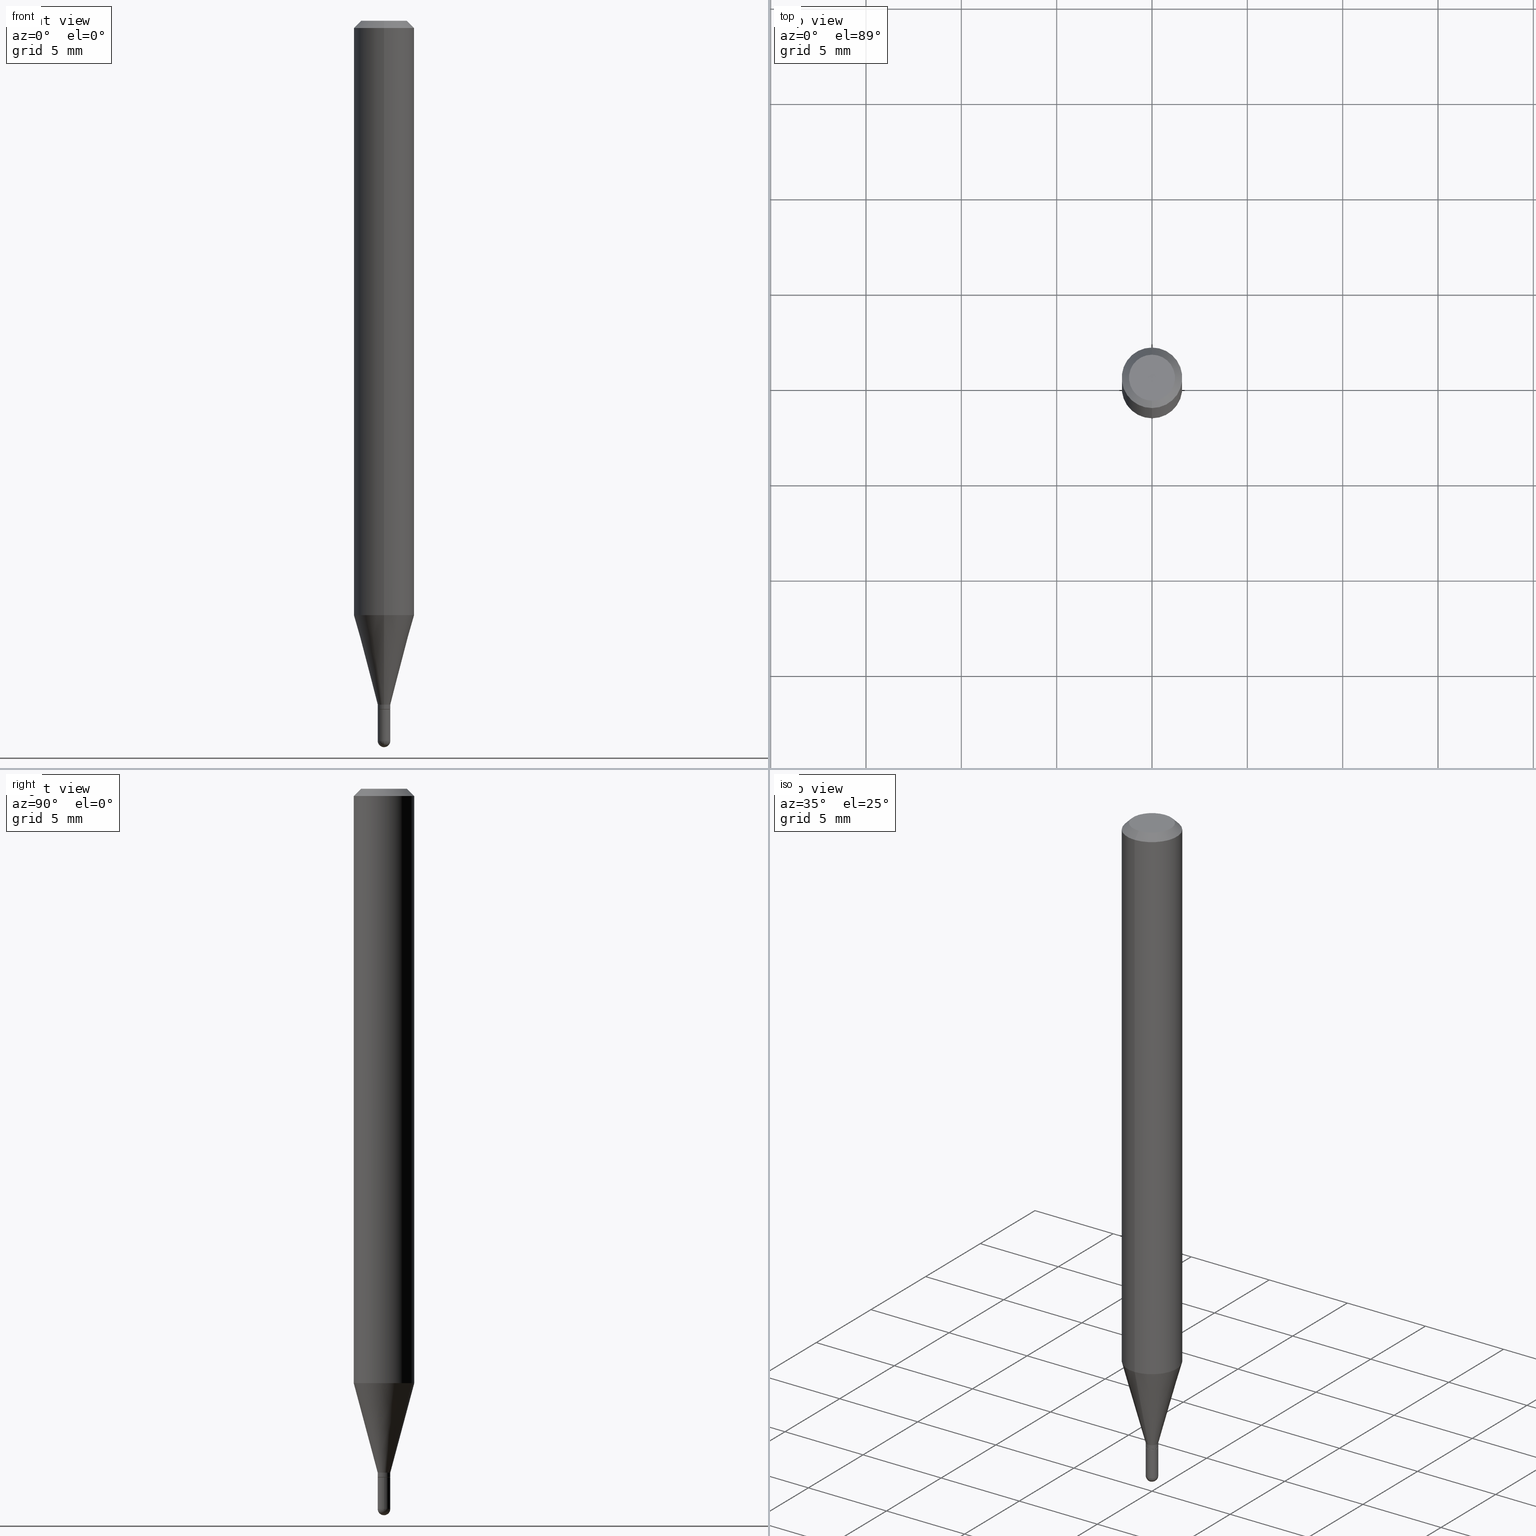
[diagram: canonical four-view strip — front | top / right | iso, engineering-drawing reading convention]
A machine part, canonical four-view strip (front | top / right | iso — engineering-drawing reading convention). The complete STEP part file that produces these views, byte-faithful:
ISO-10303-21;
HEADER;
FILE_DESCRIPTION (( 'STEP AP203' ),
    '1' );
FILE_NAME ('00464.STEP',
    '2024-03-07T17:58:41',
    ( '' ),
    ( '' ),
    'SwSTEP 2.0',
    'SolidWorks 2023',
    '' );
FILE_SCHEMA (( 'CONFIG_CONTROL_DESIGN' ));
ENDSEC;

DATA;
#1 = CIRCLE ( 'NONE', #26, 0.01299999999999999767 ) ;
#2 = COORDINATED_UNIVERSAL_TIME_OFFSET ( 5, 0, .BEHIND. ) ;
#3 = AXIS2_PLACEMENT_3D ( 'NONE', #65, #495, #218 ) ;
#4 = EDGE_LOOP ( 'NONE', ( #126, #473, #167, #361 ) ) ;
#5 = PERSON_AND_ORGANIZATION ( #78, #491 ) ;
#6 = EDGE_CURVE ( 'NONE', #319, #261, #415, .T. ) ;
#7 = COORDINATED_UNIVERSAL_TIME_OFFSET ( 5, 0, .BEHIND. ) ;
#8 = ORIENTED_EDGE ( 'NONE', *, *, #140, .T. ) ;
#9 = AXIS2_PLACEMENT_3D ( 'NONE', #129, #480, #88 ) ;
#10 = DIRECTION ( 'NONE',  ( -6.982962677686266711E-15, -1.000000000000000000, 3.491472814868969217E-15 ) ) ;
#11 = DIRECTION ( 'NONE',  ( -2.445474758444490468E-29, 3.491472814868968822E-15, 1.000000000000000000 ) ) ;
#12 = CARTESIAN_POINT ( 'NONE',  ( 3.001241874590089611E-29, -4.284957094647328536E-15, -1.227263485025340994 ) ) ;
#13 = DIRECTION ( 'NONE',  ( -2.445474758444490748E-29, 3.491472814868968822E-15, 1.000000000000000000 ) ) ;
#14 = DIRECTION ( 'NONE',  ( 2.445474758444490748E-29, -3.491472814868968822E-15, -1.000000000000000000 ) ) ;
#15 = CARTESIAN_POINT ( 'NONE',  ( 3.477465106508066119E-29, -4.964874342743674558E-15, -1.421999999999999931 ) ) ;
#16 = FACE_OUTER_BOUND ( 'NONE', #149, .T. ) ;
#17 = VECTOR ( 'NONE', #256, 39.37007874015748143 ) ;
#18 = AXIS2_PLACEMENT_3D ( 'NONE', #419, #14, #97 ) ;
#19 = DIRECTION ( 'NONE',  ( -2.445474758444490748E-29, 3.491472814868968822E-15, 1.000000000000000000 ) ) ;
#20 = CC_DESIGN_APPROVAL ( #358, ( #340 ) ) ;
#21 = LINE ( 'NONE', #141, #257 ) ;
#22 = EDGE_CURVE ( 'NONE', #261, #393, #494, .T. ) ;
#23 = LINE ( 'NONE', #486, #137 ) ;
#24 = DIRECTION ( 'NONE',  ( 1.000000000000000000, -6.982962677686258822E-15, 0.000000000000000000 ) ) ;
#25 = DIRECTION ( 'NONE',  ( -2.445474758444490748E-29, 3.491472814868968822E-15, 1.000000000000000000 ) ) ;
#26 = AXIS2_PLACEMENT_3D ( 'NONE', #136, #60, #382 ) ;
#27 = ORIENTED_EDGE ( 'NONE', *, *, #483, .F. ) ;
#28 = DIRECTION ( 'NONE',  ( -1.807323732225330139E-15, -0.2588190451025181860, 0.9659258262890689783 ) ) ;
#29 = CARTESIAN_POINT ( 'NONE',  ( 3.668212137666738049E-31, -5.237209222303456636E-17, -0.01500000000000000812 ) ) ;
#30 = ORIENTED_EDGE ( 'NONE', *, *, #127, .T. ) ;
#31 = CARTESIAN_POINT ( 'NONE',  ( 3.453010358923621239E-29, -4.929959614594984823E-15, -1.412000000000000144 ) ) ;
#32 = CARTESIAN_POINT ( 'NONE',  ( 3.477465106508066119E-29, -4.964874342743674558E-15, -1.421999999999999931 ) ) ;
#33 = ORIENTED_EDGE ( 'NONE', *, *, #501, .T. ) ;
#34 = EDGE_CURVE ( 'NONE', #394, #404, #21, .T. ) ;
#35 = VERTEX_POINT ( 'NONE', #99 ) ;
#36 = LINE ( 'NONE', #144, #89 ) ;
#37 = VERTEX_POINT ( 'NONE', #298 ) ;
#38 = CIRCLE ( 'NONE', #251, 0.01299999999999992134 ) ;
#39 = CC_DESIGN_PERSON_AND_ORGANIZATION_ASSIGNMENT ( #45, #90, ( #411 ) ) ;
#40 = AXIS2_PLACEMENT_3D ( 'NONE', #146, #267, #66 ) ;
#41 = ORIENTED_EDGE ( 'NONE', *, *, #485, .T. ) ;
#42 = CARTESIAN_POINT ( 'NONE',  ( 0.000000000000000000, 0.000000000000000000, 0.000000000000000000 ) ) ;
#43 = ORIENTED_EDGE ( 'NONE', *, *, #6, .T. ) ;
#44 = CARTESIAN_POINT ( 'NONE',  ( 3.636412114797298223E-29, -5.191832750859757506E-15, -1.487000000000000099 ) ) ;
#45 = PERSON_AND_ORGANIZATION ( #78, #491 ) ;
#46 = CONICAL_SURFACE ( 'NONE', #336, 0.01299999999999992134, 0.2617993877991502960 ) ;
#47 = AXIS2_PLACEMENT_3D ( 'NONE', #474, #506, #115 ) ;
#48 = LOCAL_TIME ( 12, 58, 41.00000000000000000, #458 ) ;
#49 = EDGE_CURVE ( 'NONE', #85, #404, #38, .T. ) ;
#50 = DIRECTION ( 'NONE',  ( 2.445474758444490748E-29, -3.491472814868968822E-15, -1.000000000000000000 ) ) ;
#51 = COORDINATED_UNIVERSAL_TIME_OFFSET ( 5, 0, .BEHIND. ) ;
#52 = ADVANCED_FACE ( 'NONE', ( #16 ), #216, .T. ) ;
#53 = CARTESIAN_POINT ( 'NONE',  ( -8.728703347104353772E-17, -0.01250000000000496374, -1.421999999999999931 ) ) ;
#54 = ORIENTED_EDGE ( 'NONE', *, *, #208, .F. ) ;
#55 = FACE_OUTER_BOUND ( 'NONE', #152, .T. ) ;
#56 = SHAPE_DEFINITION_REPRESENTATION ( #406, #57 ) ;
#57 = ADVANCED_BREP_SHAPE_REPRESENTATION ( '00464', ( #487, #306, #469 ), #194 ) ;
#58 = ORIENTED_EDGE ( 'NONE', *, *, #205, .F. ) ;
#59 = CONICAL_SURFACE ( 'NONE', #288, 0.01249999999999999896, 0.7853981633974739252 ) ;
#60 = DIRECTION ( 'NONE',  ( -2.445468806185136597E-29, 3.491481338843145583E-15, 1.000000000000000000 ) ) ;
#61 = DIRECTION ( 'NONE',  ( -2.445468806185136597E-29, 3.491481338843145583E-15, 1.000000000000000000 ) ) ;
#62 = CIRCLE ( 'NONE', #410, 0.01249999999999999896 ) ;
#63 = PRODUCT_DEFINITION_FORMATION_WITH_SPECIFIED_SOURCE ( 'ANY', '', #209, .NOT_KNOWN. ) ;
#64 = EDGE_CURVE ( 'NONE', #184, #73, #1, .T. ) ;
#65 = CARTESIAN_POINT ( 'NONE',  ( 3.668212137666738049E-31, -5.237209222303456636E-17, -0.01500000000000000812 ) ) ;
#66 = DIRECTION ( 'NONE',  ( -6.982962677686266711E-15, -1.000000000000000000, 0.000000000000000000 ) ) ;
#67 = ORIENTED_EDGE ( 'NONE', *, *, #228, .F. ) ;
#68 = CARTESIAN_POINT ( 'NONE',  ( 4.440892098500928887E-16, 0.06249999999999995837, -0.01500000000000022669 ) ) ;
#69 = DIRECTION ( 'NONE',  ( -1.000000000000000000, 7.105427357601001070E-15, -4.926315508542082329E-29 ) ) ;
#70 = AXIS2_PLACEMENT_3D ( 'NONE', #420, #341, #493 ) ;
#71 = VERTEX_POINT ( 'NONE', #293 ) ;
#72 = FACE_OUTER_BOUND ( 'NONE', #444, .T. ) ;
#73 = VERTEX_POINT ( 'NONE', #213 ) ;
#74 = DIRECTION ( 'NONE',  ( -6.982962677686265922E-15, -1.000000000000000000, 3.491472814868968428E-15 ) ) ;
#75 = DIRECTION ( 'NONE',  ( -2.445474758444490748E-29, 3.491472814868968822E-15, 1.000000000000000000 ) ) ;
#76 = ORIENTED_EDGE ( 'NONE', *, *, #485, .F. ) ;
#77 = CALENDAR_DATE ( 2024, 7, 3 ) ;
#78 = PERSON ( 'UNSPECIFIED', 'UNSPECIFIED', 'UNSPECIFIED', ('UNSPECIFIED'), ('UNSPECIFIED'), ('UNSPECIFIED') ) ;
#79 = VECTOR ( 'NONE', #221, 39.37007874015748143 ) ;
#80 = ORIENTED_EDGE ( 'NONE', *, *, #140, .F. ) ;
#81 = CARTESIAN_POINT ( 'NONE',  ( 3.477465106508066119E-29, -4.964874342743674558E-15, -1.421999999999999931 ) ) ;
#82 = VERTEX_POINT ( 'NONE', #339 ) ;
#83 = PERSON_AND_ORGANIZATION ( #78, #491 ) ;
#84 = DIRECTION ( 'NONE',  ( -6.982962677686266711E-15, -1.000000000000000000, 0.000000000000000000 ) ) ;
#85 = VERTEX_POINT ( 'NONE', #98 ) ;
#86 = APPROVAL ( #169, 'UNSPECIFIED' ) ;
#87 = CIRCLE ( 'NONE', #378, 0.01299999999999999767 ) ;
#88 = DIRECTION ( 'NONE',  ( -1.000000000000000000, 6.982962677686265922E-15, -4.876176775795935793E-29 ) ) ;
#89 = VECTOR ( 'NONE', #499, 39.37007874015748143 ) ;
#90 = PERSON_AND_ORGANIZATION_ROLE ( 'classification_officer' ) ;
#91 = APPROVAL_PERSON_ORGANIZATION ( #413, #123, #196 ) ;
#92 = EDGE_CURVE ( 'NONE', #82, #85, #457, .T. ) ;
#93 = ADVANCED_FACE ( 'NONE', ( #375 ), #296, .T. ) ;
#94 = EDGE_LOOP ( 'NONE', ( #195, #353, #248, #399, #346 ) ) ;
#95 = DIRECTION ( 'NONE',  ( -4.851104656540964275E-15, -0.7071067811865500152, -0.7071067811865450192 ) ) ;
#96 = CIRCLE ( 'NONE', #130, 0.01249999999999999896 ) ;
#97 = DIRECTION ( 'NONE',  ( 6.982962677686265922E-15, 1.000000000000000000, -3.483106191921935554E-15 ) ) ;
#98 = CARTESIAN_POINT ( 'NONE',  ( 2.682298827494699087E-16, 0.01299999999999499126, -1.412000000000000144 ) ) ;
#99 = CARTESIAN_POINT ( 'NONE',  ( 3.667647351189738769E-29, -5.238018028684164454E-15, -1.500000000000000222 ) ) ;
#100 = ADVANCED_FACE ( 'NONE', ( #348 ), #309, .T. ) ;
#101 = EDGE_CURVE ( 'NONE', #82, #394, #222, .T. ) ;
#102 = AXIS2_PLACEMENT_3D ( 'NONE', #392, #395, #24 ) ;
#103 = DIRECTION ( 'NONE',  ( -2.445468806185136877E-29, 3.491481338843145188E-15, 1.000000000000000000 ) ) ;
#104 = VERTEX_POINT ( 'NONE', #122 ) ;
#105 = DIRECTION ( 'NONE',  ( 6.982962677686265133E-15, 1.000000000000000000, 0.000000000000000000 ) ) ;
#106 = VERTEX_POINT ( 'NONE', #446 ) ;
#107 = CARTESIAN_POINT ( 'NONE',  ( 3.635300398621365410E-29, -5.193424791698649271E-15, -1.487000000000000099 ) ) ;
#108 = DIRECTION ( 'NONE',  ( -2.445474758444490748E-29, 3.491472814868968822E-15, 1.000000000000000000 ) ) ;
#109 = AXIS2_PLACEMENT_3D ( 'NONE', #422, #61, #215 ) ;
#110 = LOCAL_TIME ( 12, 58, 41.00000000000000000, #51 ) ;
#111 = ORIENTED_EDGE ( 'NONE', *, *, #379, .F. ) ;
#112 = FACE_OUTER_BOUND ( 'NONE', #4, .T. ) ;
#113 = DIRECTION ( 'NONE',  ( 1.000000000000000000, -6.982962677686258822E-15, 0.000000000000000000 ) ) ;
#114 = ORIENTED_EDGE ( 'NONE', *, *, #22, .F. ) ;
#115 = DIRECTION ( 'NONE',  ( 1.000000000000000000, -6.982962677686258822E-15, 0.000000000000000000 ) ) ;
#116 = CARTESIAN_POINT ( 'NONE',  ( 3.316907271900976096E-16, 0.04749999999999999362, -1.702753209465782678E-16 ) ) ;
#117 = ADVANCED_FACE ( 'NONE', ( #402 ), #46, .T. ) ;
#118 = ORIENTED_EDGE ( 'NONE', *, *, #127, .F. ) ;
#119 =( CONVERSION_BASED_UNIT ( 'INCH', #359 ) LENGTH_UNIT ( ) NAMED_UNIT ( #302 ) );
#120 = DIRECTION ( 'NONE',  ( -6.982962677686266711E-15, -1.000000000000000000, 3.491472814868969217E-15 ) ) ;
#121 = EDGE_LOOP ( 'NONE', ( #229, #171, #271, #162 ) ) ;
#122 = CARTESIAN_POINT ( 'NONE',  ( 9.077851480995799840E-17, 0.01299999999999483340, -1.487000000000000099 ) ) ;
#123 = APPROVAL ( #207, 'UNSPECIFIED' ) ;
#124 = SECURITY_CLASSIFICATION_LEVEL ( 'unclassified' ) ;
#125 = ADVANCED_FACE ( 'NONE', ( #313 ), #239, .F. ) ;
#126 = ORIENTED_EDGE ( 'NONE', *, *, #379, .T. ) ;
#127 = EDGE_CURVE ( 'NONE', #261, #319, #409, .T. ) ;
#128 = CLOSED_SHELL ( 'NONE', ( #158, #52, #210, #417, #275 ) ) ;
#129 = CARTESIAN_POINT ( 'NONE',  ( 9.077851480995622346E-17, 0.01299999999999503462, -1.421999999999999931 ) ) ;
#130 = AXIS2_PLACEMENT_3D ( 'NONE', #15, #25, #310 ) ;
#131 = APPLICATION_PROTOCOL_DEFINITION ( 'international standard', 'config_control_design', 1994, #284 ) ;
#132 = LOCAL_TIME ( 12, 58, 41.00000000000000000, #7 ) ;
#133 = CC_DESIGN_PERSON_AND_ORGANIZATION_ASSIGNMENT ( #365, #407, ( #63 ) ) ;
#134 = CARTESIAN_POINT ( 'NONE',  ( 0.000000000000000000, 0.000000000000000000, 0.000000000000000000 ) ) ;
#135 = VECTOR ( 'NONE', #376, 39.37007874015748143 ) ;
#136 = CARTESIAN_POINT ( 'NONE',  ( 3.477456642395264859E-29, -4.964886463834953365E-15, -1.421999999999999931 ) ) ;
#137 = VECTOR ( 'NONE', #95, 39.37007874015748143 ) ;
#138 = EDGE_CURVE ( 'NONE', #357, #71, #87, .T. ) ;
#139 = CARTESIAN_POINT ( 'NONE',  ( 4.440892098500625669E-16, 0.06250000000000000000, -2.182170509293105267E-16 ) ) ;
#140 = EDGE_CURVE ( 'NONE', #37, #393, #450, .T. ) ;
#141 = CARTESIAN_POINT ( 'NONE',  ( -9.077851480992093426E-17, -0.01299999999999992308, 4.538914659329633082E-17 ) ) ;
#142 = CARTESIAN_POINT ( 'NONE',  ( -9.077851480988645858E-17, -0.01300000000000493122, -1.421500000000000208 ) ) ;
#143 = CIRCLE ( 'NONE', #40, 0.01299999999999992308 ) ;
#144 = CARTESIAN_POINT ( 'NONE',  ( 8.881784197004727502E-17, 0.01249999999999503418, -1.421999999999999931 ) ) ;
#145 = ORIENTED_EDGE ( 'NONE', *, *, #101, .T. ) ;
#146 = CARTESIAN_POINT ( 'NONE',  ( 3.476242369128843510E-29, -4.963128606336239756E-15, -1.421500000000000208 ) ) ;
#147 = DIRECTION ( 'NONE',  ( 1.000000000000000000, -6.982962677686258822E-15, 0.000000000000000000 ) ) ;
#148 = ORIENTED_EDGE ( 'NONE', *, *, #323, .F. ) ;
#149 = EDGE_LOOP ( 'NONE', ( #278, #283, #272, #58 ) ) ;
#150 = CARTESIAN_POINT ( 'NONE',  ( 3.840629472727447874E-16, 0.04749999999999999362, -1.747056831868805136E-16 ) ) ;
#151 = CARTESIAN_POINT ( 'NONE',  ( 3.453010358923621239E-29, -4.929959614594984823E-15, -1.412000000000000144 ) ) ;
#152 = EDGE_LOOP ( 'NONE', ( #370, #186 ) ) ;
#153 = CC_DESIGN_SECURITY_CLASSIFICATION ( #411, ( #63 ) ) ;
#154 = EDGE_LOOP ( 'NONE', ( #441, #509, #276, #308, #27 ) ) ;
#155 = EDGE_CURVE ( 'NONE', #71, #104, #424, .T. ) ;
#156 = DIRECTION ( 'NONE',  ( -2.445474758444490748E-29, 3.491472814868968822E-15, 1.000000000000000000 ) ) ;
#157 = ORIENTED_EDGE ( 'NONE', *, *, #299, .F. ) ;
#158 = ADVANCED_FACE ( 'NONE', ( #356 ), #507, .T. ) ;
#159 = DIRECTION ( 'NONE',  ( 1.000000000000000000, 0.000000000000000000, 0.000000000000000000 ) ) ;
#160 = CARTESIAN_POINT ( 'NONE',  ( 0.000000000000000000, 0.000000000000000000, 0.000000000000000000 ) ) ;
#161 = EDGE_LOOP ( 'NONE', ( #427, #433, #33, #118 ) ) ;
#162 = ORIENTED_EDGE ( 'NONE', *, *, #138, .F. ) ;
#163 = PERSON_AND_ORGANIZATION ( #78, #491 ) ;
#164 = ORIENTED_EDGE ( 'NONE', *, *, #49, .F. ) ;
#165 = AXIS2_PLACEMENT_3D ( 'NONE', #459, #13, #120 ) ;
#166 = VECTOR ( 'NONE', #277, 39.37007874015748143 ) ;
#167 = ORIENTED_EDGE ( 'NONE', *, *, #6, .F. ) ;
#168 =( NAMED_UNIT ( * ) PLANE_ANGLE_UNIT ( ) SI_UNIT ( $, .RADIAN. ) );
#169 = APPROVAL_STATUS ( 'not_yet_approved' ) ;
#170 = DIRECTION ( 'NONE',  ( -2.445474758444490748E-29, 3.491472814868968822E-15, 1.000000000000000000 ) ) ;
#171 = ORIENTED_EDGE ( 'NONE', *, *, #421, .T. ) ;
#172 = EDGE_LOOP ( 'NONE', ( #188, #264, #314, #240 ) ) ;
#173 = DIRECTION ( 'NONE',  ( -2.445474758444490748E-29, 3.491472814868968822E-15, 1.000000000000000000 ) ) ;
#174 = APPLICATION_CONTEXT ( 'configuration controlled 3d designs of mechanical parts and assemblies' ) ;
#175 = CALENDAR_DATE ( 2024, 7, 3 ) ;
#176 = DIRECTION ( 'NONE',  ( -6.982962677686265922E-15, -1.000000000000000000, 4.370956789862821150E-15 ) ) ;
#177 = CC_DESIGN_DATE_AND_TIME_ASSIGNMENT ( #439, #405, ( #340 ) ) ;
#178 = CIRCLE ( 'NONE', #355, 0.04749999999999999362 ) ;
#179 = ADVANCED_FACE ( 'NONE', ( #280 ), #443, .F. ) ;
#180 = LINE ( 'NONE', #297, #380 ) ;
#181 = DIRECTION ( 'NONE',  ( -2.445474758444490748E-29, 3.491472814868968822E-15, 1.000000000000000000 ) ) ;
#182 = FACE_OUTER_BOUND ( 'NONE', #468, .T. ) ;
#183 = AXIS2_PLACEMENT_3D ( 'NONE', #426, #428, #301 ) ;
#184 = VERTEX_POINT ( 'NONE', #263 ) ;
#185 = CARTESIAN_POINT ( 'NONE',  ( -3.773273898774340269E-16, -0.04749999999999999362, 1.569842342256715058E-16 ) ) ;
#186 = ORIENTED_EDGE ( 'NONE', *, *, #483, .T. ) ;
#187 = CARTESIAN_POINT ( 'NONE',  ( -9.077851480988638462E-17, -0.01300000000000485142, -1.412000000000000144 ) ) ;
#188 = ORIENTED_EDGE ( 'NONE', *, *, #323, .T. ) ;
#189 = EDGE_CURVE ( 'NONE', #35, #357, #235, .T. ) ;
#190 = CARTESIAN_POINT ( 'NONE',  ( -9.077851480988638462E-17, -0.01300000000000485142, -1.412000000000000144 ) ) ;
#191 = DIRECTION ( 'NONE',  ( -2.445468806185136597E-29, 3.491481338843145583E-15, 1.000000000000000000 ) ) ;
#192 = AXIS2_PLACEMENT_3D ( 'NONE', #12, #454, #176 ) ;
#193 = VECTOR ( 'NONE', #350, 39.37007874015748143 ) ;
#194 =( GEOMETRIC_REPRESENTATION_CONTEXT ( 3 ) GLOBAL_UNCERTAINTY_ASSIGNED_CONTEXT ( ( #225 ) ) GLOBAL_UNIT_ASSIGNED_CONTEXT ( ( #119, #168, #448 ) ) REPRESENTATION_CONTEXT ( 'NONE', 'WORKASPACE' ) );
#195 = ORIENTED_EDGE ( 'NONE', *, *, #205, .T. ) ;
#196 = APPROVAL_ROLE ( '' ) ;
#197 = VERTEX_POINT ( 'NONE', #342 ) ;
#198 = ORIENTED_EDGE ( 'NONE', *, *, #208, .T. ) ;
#199 = EDGE_CURVE ( 'NONE', #349, #510, #311, .T. ) ;
#200 = DATE_AND_TIME ( #400, #132 ) ;
#201 = AXIS2_PLACEMENT_3D ( 'NONE', #475, #351, #360 ) ;
#202 = AXIS2_PLACEMENT_3D ( 'NONE', #219, #156, #274 ) ;
#203 = CIRCLE ( 'NONE', #244, 0.01300000000000005318 ) ;
#204 = PERSON_AND_ORGANIZATION ( #78, #491 ) ;
#205 = EDGE_CURVE ( 'NONE', #104, #197, #371, .T. ) ;
#206 = DIRECTION ( 'NONE',  ( 6.982962677686265922E-15, 1.000000000000000000, -3.483106191921935554E-15 ) ) ;
#207 = APPROVAL_STATUS ( 'not_yet_approved' ) ;
#208 = EDGE_CURVE ( 'NONE', #106, #236, #62, .T. ) ;
#209 = PRODUCT ( '00464', '00464', '', ( #279 ) ) ;
#210 = ADVANCED_FACE ( 'NONE', ( #55 ), #252, .F. ) ;
#211 = CONICAL_SURFACE ( 'NONE', #18, 0.06250000000000000000, 0.7853981633974483900 ) ;
#212 = CYLINDRICAL_SURFACE ( 'NONE', #442, 0.06250000000000000000 ) ;
#213 = CARTESIAN_POINT ( 'NONE',  ( -0.01299999999999999767, -4.985989051698542724E-15, -1.421999999999999931 ) ) ;
#214 = DIRECTION ( 'NONE',  ( -2.445474758444491028E-29, 3.491472814868968822E-15, 1.000000000000000000 ) ) ;
#215 = DIRECTION ( 'NONE',  ( 1.000000000000000000, -6.982962677686258822E-15, 0.000000000000000000 ) ) ;
#216 = SPHERICAL_SURFACE ( 'NONE', #70, 0.01300000000000005318 ) ;
#217 = CARTESIAN_POINT ( 'NONE',  ( 0.01299999999999999767, -9.077851480992146428E-17, 6.339029808534715270E-31 ) ) ;
#218 = DIRECTION ( 'NONE',  ( -6.982962677686265922E-15, -1.000000000000000000, 3.483106191921935554E-15 ) ) ;
#219 = CARTESIAN_POINT ( 'NONE',  ( 3.453010358923621239E-29, -4.929959614594984823E-15, -1.412000000000000144 ) ) ;
#220 = ORIENTED_EDGE ( 'NONE', *, *, #287, .T. ) ;
#221 = DIRECTION ( 'NONE',  ( -4.937700262164674260E-15, -0.7071067811865632269, 0.7071067811865319186 ) ) ;
#222 = CIRCLE ( 'NONE', #201, 0.01299999999999992308 ) ;
#223 = CIRCLE ( 'NONE', #3, 0.06250000000000000000 ) ;
#224 = DIRECTION ( 'NONE',  ( -7.105427357601001070E-15, -1.000000000000000000, 0.000000000000000000 ) ) ;
#225 = UNCERTAINTY_MEASURE_WITH_UNIT (LENGTH_MEASURE( 1.000000000000000082E-05 ), #119, 'distance_accuracy_value', 'NONE');
#226 = ORIENTED_EDGE ( 'NONE', *, *, #34, .T. ) ;
#227 = DIRECTION ( 'NONE',  ( -2.445474758444490748E-29, 3.491472814868968822E-15, 1.000000000000000000 ) ) ;
#228 = EDGE_CURVE ( 'NONE', #510, #349, #178, .T. ) ;
#229 = ORIENTED_EDGE ( 'NONE', *, *, #189, .F. ) ;
#230 = CARTESIAN_POINT ( 'NONE',  ( -4.364351673553916201E-16, -0.06250000000000000000, 2.182170509293105267E-16 ) ) ;
#231 = DIRECTION ( 'NONE',  ( 2.445474758444490468E-29, -3.491472814868968822E-15, -1.000000000000000000 ) ) ;
#232 = ADVANCED_FACE ( 'NONE', ( #290 ), #59, .T. ) ;
#233 = ORIENTED_EDGE ( 'NONE', *, *, #440, .T. ) ;
#234 = DIRECTION ( 'NONE',  ( 6.982962677686265922E-15, 1.000000000000000000, -3.491472814868968822E-15 ) ) ;
#235 = CIRCLE ( 'NONE', #337, 0.01300000000000005318 ) ;
#236 = VERTEX_POINT ( 'NONE', #53 ) ;
#237 = PERSON_AND_ORGANIZATION_ROLE ( 'creator' ) ;
#238 = PERSON_AND_ORGANIZATION_ROLE ( 'creator' ) ;
#239 = PLANE ( 'NONE',  #265 ) ;
#240 = ORIENTED_EDGE ( 'NONE', *, *, #440, .F. ) ;
#241 = DIRECTION ( 'NONE',  ( -6.982962677686265133E-15, -1.000000000000000000, 0.000000000000000000 ) ) ;
#242 = APPLICATION_PROTOCOL_DEFINITION ( 'international standard', 'config_control_design', 1994, #174 ) ;
#243 = CLOSED_SHELL ( 'NONE', ( #368, #100, #249, #250, #452, #117, #470, #273, #125, #179, #232, #93 ) ) ;
#244 = AXIS2_PLACEMENT_3D ( 'NONE', #107, #303, #344 ) ;
#245 = APPROVAL_PERSON_ORGANIZATION ( #163, #358, #286 ) ;
#246 = FACE_OUTER_BOUND ( 'NONE', #498, .T. ) ;
#247 = DATE_TIME_ROLE ( 'classification_date' ) ;
#248 = ORIENTED_EDGE ( 'NONE', *, *, #64, .F. ) ;
#249 = ADVANCED_FACE ( 'NONE', ( #246 ), #401, .T. ) ;
#250 = ADVANCED_FACE ( 'NONE', ( #418 ), #212, .T. ) ;
#251 = AXIS2_PLACEMENT_3D ( 'NONE', #334, #181, #488 ) ;
#252 = PLANE ( 'NONE',  #9 ) ;
#253 = CIRCLE ( 'NONE', #47, 0.01299999999999999767 ) ;
#254 = FACE_OUTER_BOUND ( 'NONE', #154, .T. ) ;
#255 = CARTESIAN_POINT ( 'NONE',  ( 0.000000000000000000, 0.000000000000000000, 0.000000000000000000 ) ) ;
#256 = DIRECTION ( 'NONE',  ( -2.445474758444491028E-29, 3.491472814868968822E-15, 1.000000000000000000 ) ) ;
#257 = VECTOR ( 'NONE', #214, 39.37007874015748143 ) ;
#258 = FACE_OUTER_BOUND ( 'NONE', #484, .T. ) ;
#259 = AXIS2_PLACEMENT_3D ( 'NONE', #31, #227, #315 ) ;
#260 = FACE_OUTER_BOUND ( 'NONE', #121, .T. ) ;
#261 = VERTEX_POINT ( 'NONE', #374 ) ;
#262 = LINE ( 'NONE', #432, #79 ) ;
#263 = CARTESIAN_POINT ( 'NONE',  ( 0.01299999999999999767, -5.055664978644874706E-15, -1.421999999999999931 ) ) ;
#264 = ORIENTED_EDGE ( 'NONE', *, *, #343, .T. ) ;
#265 = AXIS2_PLACEMENT_3D ( 'NONE', #116, #231, #234 ) ;
#266 = CC_DESIGN_PERSON_AND_ORGANIZATION_ASSIGNMENT ( #367, #237, ( #340 ) ) ;
#267 = DIRECTION ( 'NONE',  ( -2.445474758444490748E-29, 3.491472814868968822E-15, 1.000000000000000000 ) ) ;
#268 = AXIS2_PLACEMENT_3D ( 'NONE', #270, #191, #147 ) ;
#269 = LOCAL_TIME ( 12, 58, 41.00000000000000000, #317 ) ;
#270 = CARTESIAN_POINT ( 'NONE',  ( 3.636412114797298223E-29, -5.191832750859757506E-15, -1.487000000000000099 ) ) ;
#271 = ORIENTED_EDGE ( 'NONE', *, *, #155, .F. ) ;
#272 = ORIENTED_EDGE ( 'NONE', *, *, #449, .F. ) ;
#273 = ADVANCED_FACE ( 'NONE', ( #258 ), #211, .T. ) ;
#274 = DIRECTION ( 'NONE',  ( -6.982962677686266711E-15, -1.000000000000000000, 0.000000000000000000 ) ) ;
#275 = ADVANCED_FACE ( 'NONE', ( #254 ), #338, .T. ) ;
#276 = ORIENTED_EDGE ( 'NONE', *, *, #138, .T. ) ;
#277 = DIRECTION ( 'NONE',  ( -2.445474758444491028E-29, 3.491472814868968822E-15, 1.000000000000000000 ) ) ;
#278 = ORIENTED_EDGE ( 'NONE', *, *, #421, .F. ) ;
#279 = MECHANICAL_CONTEXT ( 'NONE', #174, 'mechanical' ) ;
#280 = FACE_OUTER_BOUND ( 'NONE', #316, .T. ) ;
#281 = ORIENTED_EDGE ( 'NONE', *, *, #92, .F. ) ;
#282 = AXIS2_PLACEMENT_3D ( 'NONE', #160, #318, #476 ) ;
#283 = ORIENTED_EDGE ( 'NONE', *, *, #189, .T. ) ;
#284 = APPLICATION_CONTEXT ( 'configuration controlled 3d designs of mechanical parts and assemblies' ) ;
#285 = CALENDAR_DATE ( 2024, 7, 3 ) ;
#286 = APPROVAL_ROLE ( '' ) ;
#287 = EDGE_CURVE ( 'NONE', #349, #393, #180, .T. ) ;
#288 = AXIS2_PLACEMENT_3D ( 'NONE', #373, #453, #241 ) ;
#289 = APPROVAL_PERSON_ORGANIZATION ( #5, #86, #511 ) ;
#290 = FACE_OUTER_BOUND ( 'NONE', #505, .T. ) ;
#291 = AXIS2_PLACEMENT_3D ( 'NONE', #29, #436, #500 ) ;
#292 = DATE_AND_TIME ( #175, #48 ) ;
#293 = CARTESIAN_POINT ( 'NONE',  ( 0.01299999999999999767, -5.169138122157277171E-15, -1.487000000000000099 ) ) ;
#294 = EDGE_CURVE ( 'NONE', #71, #184, #492, .T. ) ;
#295 = DIRECTION ( 'NONE',  ( -2.445468806185136877E-29, 3.491481338843145188E-15, 1.000000000000000000 ) ) ;
#296 = CYLINDRICAL_SURFACE ( 'NONE', #165, 0.01299999999999992308 ) ;
#297 = CARTESIAN_POINT ( 'NONE',  ( 4.364351673553919652E-16, 0.06249999999999995143, -0.01500000000000022669 ) ) ;
#298 = CARTESIAN_POINT ( 'NONE',  ( -4.364351673553912750E-16, -0.06250000000000005551, -0.01499999999999979128 ) ) ;
#299 = EDGE_CURVE ( 'NONE', #510, #37, #23, .T. ) ;
#300 = CIRCLE ( 'NONE', #259, 0.01299999999999992134 ) ;
#301 = DIRECTION ( 'NONE',  ( -6.982962677686266711E-15, -1.000000000000000000, 3.491472814868969217E-15 ) ) ;
#302 = DIMENSIONAL_EXPONENTS ( 1.000000000000000000, 0.000000000000000000, 0.000000000000000000, 0.000000000000000000, 0.000000000000000000, 0.000000000000000000, 0.000000000000000000 ) ;
#303 = DIRECTION ( 'NONE',  ( 1.000000000000000000, -6.982962677686265922E-15, 4.883557194083112340E-29 ) ) ;
#304 = DESIGN_CONTEXT ( 'detailed design', #284, 'design' ) ;
#305 = EDGE_LOOP ( 'NONE', ( #281, #145, #226, #164 ) ) ;
#306 = MANIFOLD_SOLID_BREP ( 'Body-Move/Copy2[2]', #243 ) ;
#307 = CARTESIAN_POINT ( 'NONE',  ( -0.01299999999999999767, 9.237055564881300760E-17, -6.394615617331376928E-31 ) ) ;
#308 = ORIENTED_EDGE ( 'NONE', *, *, #294, .T. ) ;
#309 = CONICAL_SURFACE ( 'NONE', #429, 0.01249999999999999896, 0.7853981633974739252 ) ;
#310 = DIRECTION ( 'NONE',  ( -6.982962677686265133E-15, -1.000000000000000000, 0.000000000000000000 ) ) ;
#311 = CIRCLE ( 'NONE', #416, 0.04749999999999999362 ) ;
#312 = CC_DESIGN_APPROVAL ( #86, ( #63 ) ) ;
#313 = FACE_OUTER_BOUND ( 'NONE', #325, .T. ) ;
#314 = ORIENTED_EDGE ( 'NONE', *, *, #398, .F. ) ;
#315 = DIRECTION ( 'NONE',  ( -6.982962677686266711E-15, -1.000000000000000000, 0.000000000000000000 ) ) ;
#316 = EDGE_LOOP ( 'NONE', ( #148, #54 ) ) ;
#317 = COORDINATED_UNIVERSAL_TIME_OFFSET ( 5, 0, .BEHIND. ) ;
#318 = DIRECTION ( 'NONE',  ( -2.445468806185136597E-29, 3.491481338843145583E-15, 1.000000000000000000 ) ) ;
#319 = VERTEX_POINT ( 'NONE', #333 ) ;
#320 = ORIENTED_EDGE ( 'NONE', *, *, #299, .T. ) ;
#321 = DATE_AND_TIME ( #77, #269 ) ;
#322 = DIRECTION ( 'NONE',  ( -2.445468806185136597E-29, 3.491481338843145583E-15, 1.000000000000000000 ) ) ;
#323 = EDGE_CURVE ( 'NONE', #236, #106, #96, .T. ) ;
#324 = AXIS2_PLACEMENT_3D ( 'NONE', #412, #50, #206 ) ;
#325 = EDGE_LOOP ( 'NONE', ( #502, #464 ) ) ;
#326 = EDGE_CURVE ( 'NONE', #85, #261, #347, .T. ) ;
#327 = APPROVAL_DATE_TIME ( #321, #86 ) ;
#328 = DIRECTION ( 'NONE',  ( 0.000000000000000000, 0.000000000000000000, 1.000000000000000000 ) ) ;
#329 = AXIS2_PLACEMENT_3D ( 'NONE', #386, #465, #105 ) ;
#330 = CC_DESIGN_DATE_AND_TIME_ASSIGNMENT ( #481, #247, ( #411 ) ) ;
#331 = DIRECTION ( 'NONE',  ( 1.000000000000000000, -6.982962677686267499E-15, 4.876176775795935793E-29 ) ) ;
#332 = DIRECTION ( 'NONE',  ( -6.982962677686265922E-15, -1.000000000000000000, 3.491472814868968428E-15 ) ) ;
#333 = CARTESIAN_POINT ( 'NONE',  ( -4.364351673553616434E-16, -0.06250000000000428824, -1.227263485025340772 ) ) ;
#334 = CARTESIAN_POINT ( 'NONE',  ( 3.453010358923621239E-29, -4.929959614594984823E-15, -1.412000000000000144 ) ) ;
#335 = DIRECTION ( 'NONE',  ( -2.445474758444490748E-29, 3.491472814868968822E-15, 1.000000000000000000 ) ) ;
#336 = AXIS2_PLACEMENT_3D ( 'NONE', #151, #75, #84 ) ;
#337 = AXIS2_PLACEMENT_3D ( 'NONE', #383, #69, #224 ) ;
#338 = CYLINDRICAL_SURFACE ( 'NONE', #431, 0.01299999999999999767 ) ;
#339 = CARTESIAN_POINT ( 'NONE',  ( 9.237055564884691629E-17, 0.01299999999999491666, -1.421500000000000208 ) ) ;
#340 = PRODUCT_DEFINITION ( 'UNKNOWN', '', #63, #304 ) ;
#341 = DIRECTION ( 'NONE',  ( -1.000000000000000000, 6.982962677686265133E-15, -4.883557194083111780E-29 ) ) ;
#342 = CARTESIAN_POINT ( 'NONE',  ( -0.01299999999999999767, -4.985989051698542724E-15, -1.487000000000000099 ) ) ;
#343 = EDGE_CURVE ( 'NONE', #106, #82, #36, .T. ) ;
#344 = DIRECTION ( 'NONE',  ( 6.982962677686265133E-15, 1.000000000000000000, 0.000000000000000000 ) ) ;
#345 = DIRECTION ( 'NONE',  ( -2.445474758444490748E-29, 3.491472814868968822E-15, 1.000000000000000000 ) ) ;
#346 = ORIENTED_EDGE ( 'NONE', *, *, #155, .T. ) ;
#347 = LINE ( 'NONE', #354, #193 ) ;
#348 = FACE_OUTER_BOUND ( 'NONE', #172, .T. ) ;
#349 = VERTEX_POINT ( 'NONE', #150 ) ;
#350 = DIRECTION ( 'NONE',  ( 1.839019923739600315E-15, 0.2588190451025249583, 0.9659258262890670910 ) ) ;
#351 = DIRECTION ( 'NONE',  ( -2.445474758444490748E-29, 3.491472814868968822E-15, 1.000000000000000000 ) ) ;
#352 = ORIENTED_EDGE ( 'NONE', *, *, #504, .T. ) ;
#353 = ORIENTED_EDGE ( 'NONE', *, *, #403, .T. ) ;
#354 = CARTESIAN_POINT ( 'NONE',  ( 9.237055564884697792E-17, 0.01299999999999499126, -1.412000000000000144 ) ) ;
#355 = AXIS2_PLACEMENT_3D ( 'NONE', #414, #170, #10 ) ;
#356 = FACE_OUTER_BOUND ( 'NONE', #94, .T. ) ;
#357 = VERTEX_POINT ( 'NONE', #385 ) ;
#358 = APPROVAL ( #479, 'UNSPECIFIED' ) ;
#359 = LENGTH_MEASURE_WITH_UNIT ( LENGTH_MEASURE( 0.02539999999999999897 ), #369 );
#360 = DIRECTION ( 'NONE',  ( -6.982962677686266711E-15, -1.000000000000000000, 0.000000000000000000 ) ) ;
#361 = ORIENTED_EDGE ( 'NONE', *, *, #501, .F. ) ;
#362 = ORIENTED_EDGE ( 'NONE', *, *, #504, .F. ) ;
#363 = APPROVAL_DATE_TIME ( #200, #358 ) ;
#364 = CARTESIAN_POINT ( 'NONE',  ( 3.001241874590089611E-29, -4.284957094647328536E-15, -1.227263485025340994 ) ) ;
#365 = PERSON_AND_ORGANIZATION ( #78, #491 ) ;
#366 = VECTOR ( 'NONE', #103, 39.37007874015748143 ) ;
#367 = PERSON_AND_ORGANIZATION ( #78, #491 ) ;
#368 = ADVANCED_FACE ( 'NONE', ( #72 ), #461, .T. ) ;
#369 =( LENGTH_UNIT ( ) NAMED_UNIT ( * ) SI_UNIT ( $, .METRE. ) );
#370 = ORIENTED_EDGE ( 'NONE', *, *, #64, .T. ) ;
#371 = CIRCLE ( 'NONE', #109, 0.01299999999999999767 ) ;
#372 = ORIENTED_EDGE ( 'NONE', *, *, #92, .T. ) ;
#373 = CARTESIAN_POINT ( 'NONE',  ( 3.477465106508066119E-29, -4.964874342743674558E-15, -1.421999999999999931 ) ) ;
#374 = CARTESIAN_POINT ( 'NONE',  ( 4.440892098500924943E-16, 0.06249999999999571176, -1.227263485025341216 ) ) ;
#375 = FACE_OUTER_BOUND ( 'NONE', #305, .T. ) ;
#376 = DIRECTION ( 'NONE',  ( -2.445474758444491028E-29, 3.491472814868968822E-15, 1.000000000000000000 ) ) ;
#377 = CARTESIAN_POINT ( 'NONE',  ( 3.477465106508066119E-29, -4.964874342743674558E-15, -1.421999999999999931 ) ) ;
#378 = AXIS2_PLACEMENT_3D ( 'NONE', #44, #322, #113 ) ;
#379 = EDGE_CURVE ( 'NONE', #404, #85, #300, .T. ) ;
#380 = VECTOR ( 'NONE', #425, 39.37007874015748143 ) ;
#381 = CC_DESIGN_APPROVAL ( #123, ( #411 ) ) ;
#382 = DIRECTION ( 'NONE',  ( 1.000000000000000000, -6.982962677686258822E-15, 0.000000000000000000 ) ) ;
#383 = CARTESIAN_POINT ( 'NONE',  ( 3.635300398621365410E-29, -5.193424791698649271E-15, -1.487000000000000099 ) ) ;
#384 = DIRECTION ( 'NONE',  ( -2.445468806185136597E-29, 3.491481338843145583E-15, 1.000000000000000000 ) ) ;
#385 = CARTESIAN_POINT ( 'NONE',  ( -9.237055564877684326E-17, -0.01300000000000521919, -1.487000000000000099 ) ) ;
#386 = CARTESIAN_POINT ( 'NONE',  ( 3.635300398621365410E-29, -5.193424791698649271E-15, -1.487000000000000099 ) ) ;
#387 = ORIENTED_EDGE ( 'NONE', *, *, #34, .F. ) ;
#388 = AXIS2_PLACEMENT_3D ( 'NONE', #389, #345, #74 ) ;
#389 = CARTESIAN_POINT ( 'NONE',  ( 0.000000000000000000, 0.000000000000000000, 0.000000000000000000 ) ) ;
#390 = CARTESIAN_POINT ( 'NONE',  ( 2.166867805884945142E-46, -3.093697864407453653E-32, -8.860724480604490072E-18 ) ) ;
#391 = ORIENTED_EDGE ( 'NONE', *, *, #287, .F. ) ;
#392 = CARTESIAN_POINT ( 'NONE',  ( 3.636412114797298223E-29, -5.191832750859757506E-15, -1.487000000000000099 ) ) ;
#393 = VERTEX_POINT ( 'NONE', #68 ) ;
#394 = VERTEX_POINT ( 'NONE', #142 ) ;
#395 = DIRECTION ( 'NONE',  ( -2.445468806185136597E-29, 3.491481338843145583E-15, 1.000000000000000000 ) ) ;
#396 = DIRECTION ( 'NONE',  ( -6.982962677686265922E-15, -1.000000000000000000, 4.370956789862821150E-15 ) ) ;
#397 = PRODUCT_RELATED_PRODUCT_CATEGORY ( 'detail', '', ( #209 ) ) ;
#398 = EDGE_CURVE ( 'NONE', #394, #82, #143, .T. ) ;
#399 = ORIENTED_EDGE ( 'NONE', *, *, #294, .F. ) ;
#400 = CALENDAR_DATE ( 2024, 7, 3 ) ;
#401 = CONICAL_SURFACE ( 'NONE', #324, 0.06250000000000000000, 0.7853981633974483900 ) ;
#402 = FACE_OUTER_BOUND ( 'NONE', #161, .T. ) ;
#403 = EDGE_CURVE ( 'NONE', #197, #73, #471, .T. ) ;
#404 = VERTEX_POINT ( 'NONE', #187 ) ;
#405 = DATE_TIME_ROLE ( 'creation_date' ) ;
#406 = PRODUCT_DEFINITION_SHAPE ( 'NONE', 'NONE',  #340 ) ;
#407 = PERSON_AND_ORGANIZATION_ROLE ( 'design_supplier' ) ;
#408 = ORIENTED_EDGE ( 'NONE', *, *, #22, .T. ) ;
#409 = CIRCLE ( 'NONE', #466, 0.06250000000000000000 ) ;
#410 = AXIS2_PLACEMENT_3D ( 'NONE', #377, #19, #447 ) ;
#411 = SECURITY_CLASSIFICATION ( '', '', #124 ) ;
#412 = CARTESIAN_POINT ( 'NONE',  ( 3.668212137666738049E-31, -5.237209222303456636E-17, -0.01500000000000000812 ) ) ;
#413 = PERSON_AND_ORGANIZATION ( #78, #491 ) ;
#414 = CARTESIAN_POINT ( 'NONE',  ( 2.166867805884945142E-46, -3.093697864407453653E-32, -8.860724480604490072E-18 ) ) ;
#415 = CIRCLE ( 'NONE', #192, 0.06250000000000000000 ) ;
#416 = AXIS2_PLACEMENT_3D ( 'NONE', #390, #335, #490 ) ;
#417 = ADVANCED_FACE ( 'NONE', ( #260 ), #503, .T. ) ;
#418 = FACE_OUTER_BOUND ( 'NONE', #438, .T. ) ;
#419 = CARTESIAN_POINT ( 'NONE',  ( 3.668212137666738049E-31, -5.237209222303456636E-17, -0.01500000000000000812 ) ) ;
#420 = CARTESIAN_POINT ( 'NONE',  ( 3.635300398621365410E-29, -5.193424791698649271E-15, -1.487000000000000099 ) ) ;
#421 = EDGE_CURVE ( 'NONE', #35, #104, #203, .T. ) ;
#422 = CARTESIAN_POINT ( 'NONE',  ( 3.636412114797298223E-29, -5.191832750859757506E-15, -1.487000000000000099 ) ) ;
#423 = CARTESIAN_POINT ( 'NONE',  ( 9.237055564881246526E-17, 0.01299999999999992308, -4.538914659329633082E-17 ) ) ;
#424 = CIRCLE ( 'NONE', #268, 0.01299999999999999767 ) ;
#425 = DIRECTION ( 'NONE',  ( 4.937700262164548042E-15, 0.7071067811865451302, -0.7071067811865499042 ) ) ;
#426 = CARTESIAN_POINT ( 'NONE',  ( 0.000000000000000000, 0.000000000000000000, 0.000000000000000000 ) ) ;
#427 = ORIENTED_EDGE ( 'NONE', *, *, #326, .F. ) ;
#428 = DIRECTION ( 'NONE',  ( -2.445474758444490748E-29, 3.491472814868968822E-15, 1.000000000000000000 ) ) ;
#429 = AXIS2_PLACEMENT_3D ( 'NONE', #32, #108, #512 ) ;
#430 = ORIENTED_EDGE ( 'NONE', *, *, #101, .F. ) ;
#431 = AXIS2_PLACEMENT_3D ( 'NONE', #255, #384, #331 ) ;
#432 = CARTESIAN_POINT ( 'NONE',  ( -8.728703347104353772E-17, -0.01250000000000496374, -1.421999999999999931 ) ) ;
#433 = ORIENTED_EDGE ( 'NONE', *, *, #49, .T. ) ;
#434 = ORIENTED_EDGE ( 'NONE', *, *, #343, .F. ) ;
#435 = CYLINDRICAL_SURFACE ( 'NONE', #388, 0.06250000000000000000 ) ;
#436 = DIRECTION ( 'NONE',  ( -2.445474758444490748E-29, 3.491472814868968822E-15, 1.000000000000000000 ) ) ;
#437 = CC_DESIGN_PERSON_AND_ORGANIZATION_ASSIGNMENT ( #204, #478, ( #209 ) ) ;
#438 = EDGE_LOOP ( 'NONE', ( #43, #408, #80, #76 ) ) ;
#439 = DATE_AND_TIME ( #482, #110 ) ;
#440 = EDGE_CURVE ( 'NONE', #236, #394, #262, .T. ) ;
#441 = ORIENTED_EDGE ( 'NONE', *, *, #403, .F. ) ;
#442 = AXIS2_PLACEMENT_3D ( 'NONE', #134, #173, #332 ) ;
#443 = PLANE ( 'NONE',  #489 ) ;
#444 = EDGE_LOOP ( 'NONE', ( #477, #372, #111, #387 ) ) ;
#445 = CC_DESIGN_PERSON_AND_ORGANIZATION_ASSIGNMENT ( #83, #238, ( #63 ) ) ;
#446 = CARTESIAN_POINT ( 'NONE',  ( 9.059419880944725589E-17, 0.01249999999999503418, -1.421999999999999931 ) ) ;
#447 = DIRECTION ( 'NONE',  ( -6.982962677686265133E-15, -1.000000000000000000, 0.000000000000000000 ) ) ;
#448 =( NAMED_UNIT ( * ) SI_UNIT ( $, .STERADIAN. ) SOLID_ANGLE_UNIT ( ) );
#449 = EDGE_CURVE ( 'NONE', #197, #357, #467, .T. ) ;
#450 = CIRCLE ( 'NONE', #291, 0.06250000000000000000 ) ;
#451 = LOCAL_TIME ( 12, 58, 41.00000000000000000, #2 ) ;
#452 = ADVANCED_FACE ( 'NONE', ( #112 ), #460, .T. ) ;
#453 = DIRECTION ( 'NONE',  ( -2.445474758444490748E-29, 3.491472814868968822E-15, 1.000000000000000000 ) ) ;
#454 = DIRECTION ( 'NONE',  ( -2.445474758444490748E-29, 3.491472814868968822E-15, 1.000000000000000000 ) ) ;
#455 = VECTOR ( 'NONE', #28, 39.37007874015748143 ) ;
#456 = APPROVAL_DATE_TIME ( #292, #123 ) ;
#457 = LINE ( 'NONE', #423, #135 ) ;
#458 = COORDINATED_UNIVERSAL_TIME_OFFSET ( 5, 0, .BEHIND. ) ;
#459 = CARTESIAN_POINT ( 'NONE',  ( 0.000000000000000000, 0.000000000000000000, 0.000000000000000000 ) ) ;
#460 = CONICAL_SURFACE ( 'NONE', #202, 0.01299999999999992134, 0.2617993877991502960 ) ;
#461 = CYLINDRICAL_SURFACE ( 'NONE', #183, 0.01299999999999992308 ) ;
#462 = LINE ( 'NONE', #190, #455 ) ;
#463 = DIRECTION ( 'NONE',  ( -6.982962677686265922E-15, -1.000000000000000000, 3.491472814868968822E-15 ) ) ;
#464 = ORIENTED_EDGE ( 'NONE', *, *, #228, .T. ) ;
#465 = DIRECTION ( 'NONE',  ( -1.000000000000000000, 6.982962677686265133E-15, -4.883557194083111780E-29 ) ) ;
#466 = AXIS2_PLACEMENT_3D ( 'NONE', #364, #472, #396 ) ;
#467 = CIRCLE ( 'NONE', #102, 0.01299999999999999767 ) ;
#468 = EDGE_LOOP ( 'NONE', ( #114, #30, #41, #362 ) ) ;
#469 = AXIS2_PLACEMENT_3D ( 'NONE', #42, #328, #159 ) ;
#470 = ADVANCED_FACE ( 'NONE', ( #182 ), #435, .T. ) ;
#471 = LINE ( 'NONE', #307, #366 ) ;
#472 = DIRECTION ( 'NONE',  ( -2.445474758444490748E-29, 3.491472814868968822E-15, 1.000000000000000000 ) ) ;
#473 = ORIENTED_EDGE ( 'NONE', *, *, #326, .T. ) ;
#474 = CARTESIAN_POINT ( 'NONE',  ( 3.477456642395264859E-29, -4.964886463834953365E-15, -1.421999999999999931 ) ) ;
#475 = CARTESIAN_POINT ( 'NONE',  ( 3.476242369128843510E-29, -4.963128606336239756E-15, -1.421500000000000208 ) ) ;
#476 = DIRECTION ( 'NONE',  ( 1.000000000000000000, -6.982962677686267499E-15, 4.876176775795935793E-29 ) ) ;
#477 = ORIENTED_EDGE ( 'NONE', *, *, #398, .T. ) ;
#478 = PERSON_AND_ORGANIZATION_ROLE ( 'design_owner' ) ;
#479 = APPROVAL_STATUS ( 'not_yet_approved' ) ;
#480 = DIRECTION ( 'NONE',  ( 2.438088387897960049E-29, -3.491481338843145188E-15, -1.000000000000000000 ) ) ;
#481 = DATE_AND_TIME ( #285, #451 ) ;
#482 = CALENDAR_DATE ( 2024, 7, 3 ) ;
#483 = EDGE_CURVE ( 'NONE', #73, #184, #253, .T. ) ;
#484 = EDGE_LOOP ( 'NONE', ( #157, #508, #220, #352 ) ) ;
#485 = EDGE_CURVE ( 'NONE', #319, #37, #497, .T. ) ;
#486 = CARTESIAN_POINT ( 'NONE',  ( -4.287811248607203282E-16, -0.06250000000000005551, -0.01499999999999979128 ) ) ;
#487 = MANIFOLD_SOLID_BREP ( 'Body-Move/Copy2[1]', #128 ) ;
#488 = DIRECTION ( 'NONE',  ( -6.982962677686266711E-15, -1.000000000000000000, 0.000000000000000000 ) ) ;
#489 = AXIS2_PLACEMENT_3D ( 'NONE', #81, #11, #463 ) ;
#490 = DIRECTION ( 'NONE',  ( -6.982962677686266711E-15, -1.000000000000000000, 3.491472814868969217E-15 ) ) ;
#491 = ORGANIZATION ( 'UNSPECIFIED', 'UNSPECIFIED', '' ) ;
#492 = LINE ( 'NONE', #217, #496 ) ;
#493 = DIRECTION ( 'NONE',  ( 6.982962677686265133E-15, 1.000000000000000000, 0.000000000000000000 ) ) ;
#494 = LINE ( 'NONE', #139, #17 ) ;
#495 = DIRECTION ( 'NONE',  ( -2.445474758444490748E-29, 3.491472814868968822E-15, 1.000000000000000000 ) ) ;
#496 = VECTOR ( 'NONE', #295, 39.37007874015748143 ) ;
#497 = LINE ( 'NONE', #230, #166 ) ;
#498 = EDGE_LOOP ( 'NONE', ( #67, #320, #8, #391 ) ) ;
#499 = DIRECTION ( 'NONE',  ( 5.024295867788190974E-15, 0.7071067811865681119, 0.7071067811865270336 ) ) ;
#500 = DIRECTION ( 'NONE',  ( -6.982962677686265922E-15, -1.000000000000000000, 3.483106191921935554E-15 ) ) ;
#501 = EDGE_CURVE ( 'NONE', #404, #319, #462, .T. ) ;
#502 = ORIENTED_EDGE ( 'NONE', *, *, #199, .T. ) ;
#503 = SPHERICAL_SURFACE ( 'NONE', #329, 0.01300000000000005318 ) ;
#504 = EDGE_CURVE ( 'NONE', #393, #37, #223, .T. ) ;
#505 = EDGE_LOOP ( 'NONE', ( #434, #198, #233, #430 ) ) ;
#506 = DIRECTION ( 'NONE',  ( -2.445468806185136597E-29, 3.491481338843145583E-15, 1.000000000000000000 ) ) ;
#507 = CYLINDRICAL_SURFACE ( 'NONE', #282, 0.01299999999999999767 ) ;
#508 = ORIENTED_EDGE ( 'NONE', *, *, #199, .F. ) ;
#509 = ORIENTED_EDGE ( 'NONE', *, *, #449, .T. ) ;
#510 = VERTEX_POINT ( 'NONE', #185 ) ;
#511 = APPROVAL_ROLE ( '' ) ;
#512 = DIRECTION ( 'NONE',  ( -6.982962677686265133E-15, -1.000000000000000000, 0.000000000000000000 ) ) ;
ENDSEC;
END-ISO-10303-21;
